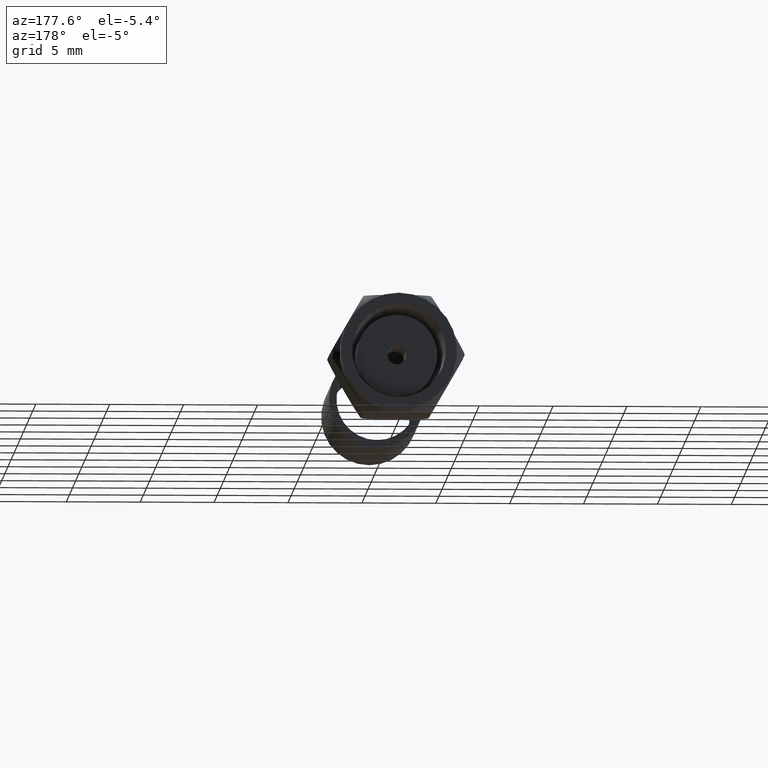
[diagram: clean part render]
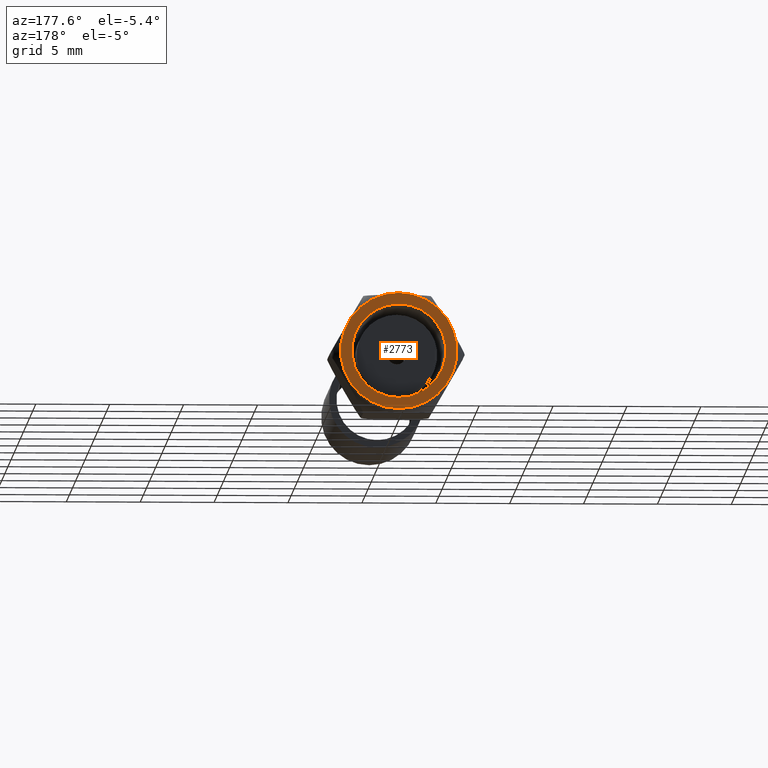
[diagram: same view with one face highlighted and labeled with its STEP entity id]
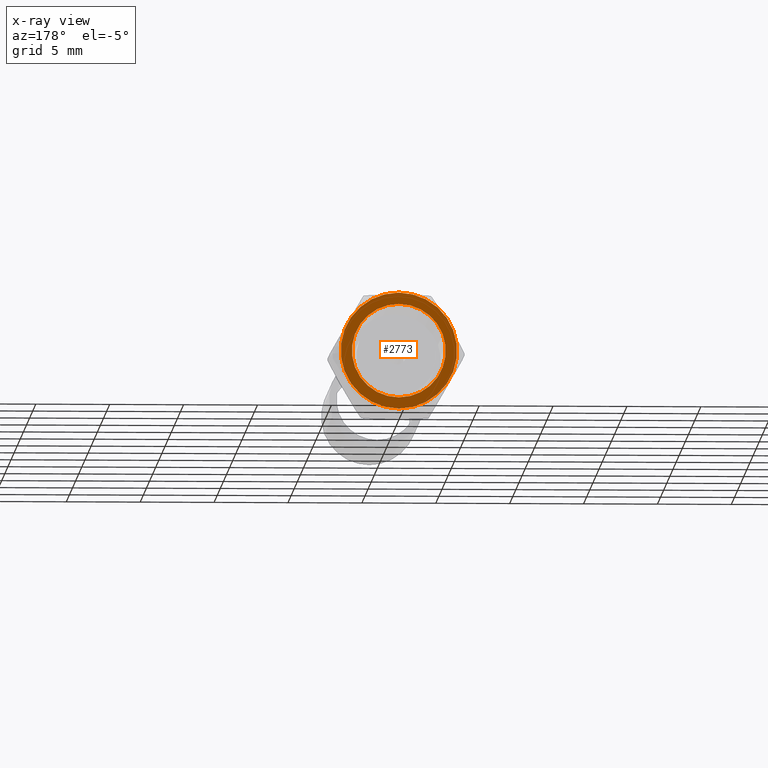
[diagram: x-ray of the same camera — body ghosted, the highlighted face saturated]
A machine part, auxiliary view. The second image highlights one B-rep face of the part: STEP entity #2773.
The next image is the same camera in x-ray: the body ghosted, the highlighted face saturated — about 0% of this face is hidden behind the body in this view.
In plain terms, the highlighted planar face has unit normal (0, 1, 0).
Its self-contained STEP definition (entity closure, byte-faithful):
#1368 = CARTESIAN_POINT ( 'NONE',  ( 0.0000000000000000000, 0.1845000000000000000, 0.0000000000000000000 ) ) ;
#1369 = CIRCLE ( 'NONE', #1427, 0.1250000000000000000 ) ;
#1423 = CARTESIAN_POINT ( 'NONE',  ( 1.530808498934191500E-017, 0.1845000000000000000, -0.1250000000000000000 ) ) ;
#1425 = DIRECTION ( 'NONE',  ( 0.0000000000000000000, 0.0000000000000000000, 1.000000000000000000 ) ) ;
#1426 = DIRECTION ( 'NONE',  ( 0.0000000000000000000, 1.000000000000000000, 0.0000000000000000000 ) ) ;
#1427 = AXIS2_PLACEMENT_3D ( 'NONE', #1368, #1426, #1425 ) ;
#1429 = CARTESIAN_POINT ( 'NONE',  ( 0.0000000000000000000, 0.1845000000000000000, 0.1250000000000000000 ) ) ;
#1436 = CARTESIAN_POINT ( 'NONE',  ( 0.0000000000000000000, 0.1845000000000000000, 0.0000000000000000000 ) ) ;
#1437 = PLANE ( 'NONE',  #1487 ) ;
#1455 = DIRECTION ( 'NONE',  ( 0.0000000000000000000, 0.0000000000000000000, 1.000000000000000000 ) ) ;
#1456 = DIRECTION ( 'NONE',  ( 0.0000000000000000000, 1.000000000000000000, 0.0000000000000000000 ) ) ;
#1457 = AXIS2_PLACEMENT_3D ( 'NONE', #1465, #1456, #1455 ) ;
#1459 = DIRECTION ( 'NONE',  ( 0.0000000000000000000, 0.0000000000000000000, 1.000000000000000000 ) ) ;
#1460 = DIRECTION ( 'NONE',  ( 0.0000000000000000000, 1.000000000000000000, 0.0000000000000000000 ) ) ;
#1461 = CARTESIAN_POINT ( 'NONE',  ( 0.0000000000000000000, 0.1845000000000000000, 0.0000000000000000000 ) ) ;
#1462 = AXIS2_PLACEMENT_3D ( 'NONE', #1461, #1460, #1459 ) ;
#1464 = DIRECTION ( 'NONE',  ( 0.0000000000000000000, -0.0000000000000000000, 1.000000000000000000 ) ) ;
#1465 = CARTESIAN_POINT ( 'NONE',  ( 0.0000000000000000000, 0.1845000000000000000, 0.0000000000000000000 ) ) ;
#1466 = CIRCLE ( 'NONE', #1457, 0.1250000000000000000 ) ;
#1467 = CIRCLE ( 'NONE', #1462, 0.1550000000000000000 ) ;
#1485 = FACE_OUTER_BOUND ( 'NONE', #2787, .T. ) ;
#1486 = FACE_BOUND ( 'NONE', #2790, .T. ) ;
#1487 = AXIS2_PLACEMENT_3D ( 'NONE', #1436, #1490, #1464 ) ;
#1490 = DIRECTION ( 'NONE',  ( 0.0000000000000000000, 1.000000000000000000, 0.0000000000000000000 ) ) ;
#1829 = DIRECTION ( 'NONE',  ( 0.0000000000000000000, 0.0000000000000000000, 1.000000000000000000 ) ) ;
#1830 = DIRECTION ( 'NONE',  ( 0.0000000000000000000, 1.000000000000000000, 0.0000000000000000000 ) ) ;
#1831 = CARTESIAN_POINT ( 'NONE',  ( 0.0000000000000000000, 0.1845000000000000000, 0.0000000000000000000 ) ) ;
#1848 = CARTESIAN_POINT ( 'NONE',  ( 1.898202538678397300E-017, 0.1845000000000000000, 0.1550000000000000000 ) ) ;
#1849 = AXIS2_PLACEMENT_3D ( 'NONE', #1831, #1830, #1829 ) ;
#1861 = CARTESIAN_POINT ( 'NONE',  ( 0.0000000000000000000, 0.1845000000000000000, -0.1550000000000000000 ) ) ;
#1863 = CIRCLE ( 'NONE', #1849, 0.1550000000000000000 ) ;
#2773 = ADVANCED_FACE ( 'NONE', ( #1486, #1485 ), #1437, .T. ) ;
#2774 = ORIENTED_EDGE ( 'NONE', *, *, #2780, .F. ) ;
#2776 = EDGE_CURVE ( 'NONE', #3061, #3059, #1467, .T. ) ;
#2779 = ORIENTED_EDGE ( 'NONE', *, *, #2776, .T. ) ;
#2780 = EDGE_CURVE ( 'NONE', #2877, #2879, #1466, .T. ) ;
#2782 = ORIENTED_EDGE ( 'NONE', *, *, #3062, .T. ) ;
#2784 = ORIENTED_EDGE ( 'NONE', *, *, #2875, .F. ) ;
#2787 = EDGE_LOOP ( 'NONE', ( #2779, #2782 ) ) ;
#2790 = EDGE_LOOP ( 'NONE', ( #2774, #2784 ) ) ;
#2875 = EDGE_CURVE ( 'NONE', #2879, #2877, #1369, .T. ) ;
#2877 = VERTEX_POINT ( 'NONE', #1429 ) ;
#2879 = VERTEX_POINT ( 'NONE', #1423 ) ;
#3059 = VERTEX_POINT ( 'NONE', #1848 ) ;
#3061 = VERTEX_POINT ( 'NONE', #1861 ) ;
#3062 = EDGE_CURVE ( 'NONE', #3059, #3061, #1863, .T. ) ;